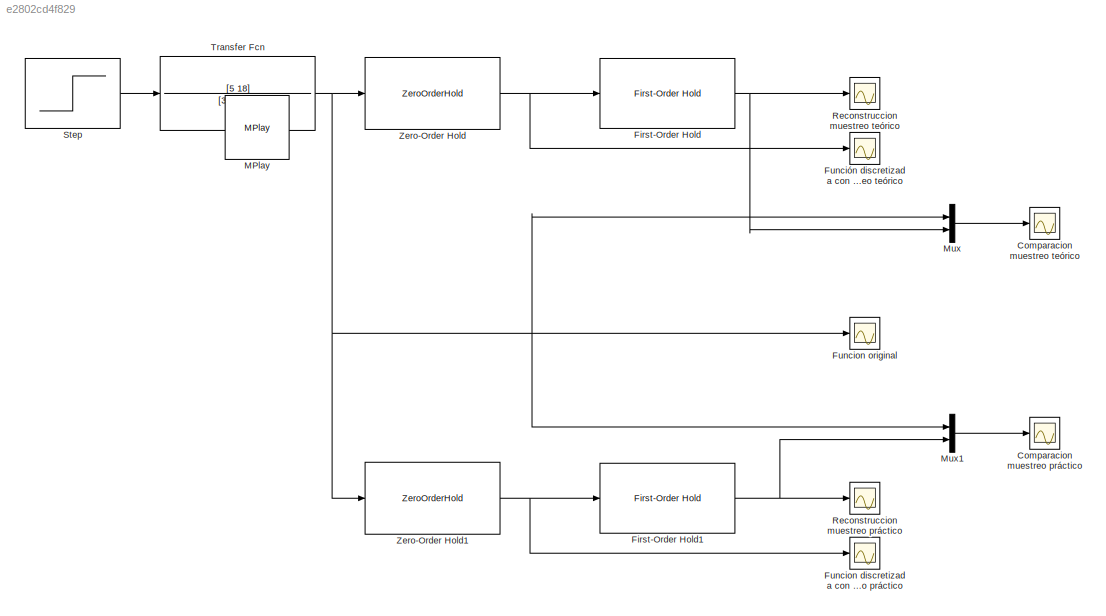
MODEL slx_e2802cd4f829
KIND model
BLOCK [Scope] Comparacion muestreo práctico
  DataFormat = StructureWithTime
  Floating = off
  LegendLocations = 0.86363    0.086484     0.10029    0.053097
  NumInputPorts = 1
  Ports = [1]
  SampleTime = 0
  SaveName = ScopeData6
  ShowLegends = on
BLOCK [Scope] Comparacion muestreo teórico
  DataFormat = StructureWithTime
  Floating = off
  LegendLocations = 0.86583    0.086484      0.0959    0.053097
  NumInputPorts = 1
  Ports = [1]
  SampleTime = 0
  SaveName = ScopeData7
  ShowLegends = on
BLOCK [Reference] First-Order Hold  REF=simulink/Discrete/First-Order
Hold
  DisableCoverage = on
  Ports = [1, 1]
  SourceBlock = simulink/Discrete/First-Order\nHold
  SourceType = First-Order Hold
  Ts = 3.685
BLOCK [Reference] First-Order Hold1  REF=simulink/Discrete/First-Order
Hold
  DisableCoverage = on
  Ports = [1, 1]
  SourceBlock = simulink/Discrete/First-Order\nHold
  SourceType = First-Order Hold
  Ts = 0.3685
BLOCK [Scope] Funcion discretizada con muestreo práctico
  DataFormat = StructureWithTime
  Floating = off
  NumInputPorts = 1
  Ports = [1]
  SampleTime = 0
  SaveName = ScopeData4
  ShowLegends = off
BLOCK [Scope] Funcion original 
  DataFormat = StructureWithTime
  Floating = off
  NumInputPorts = 1
  Ports = [1]
  SampleTime = 0
  SaveName = ScopeData2
  ShowLegends = off
BLOCK [Scope] Función discretizada con muestreo teórico
  DataFormat = StructureWithTime
  Floating = off
  NumInputPorts = 1
  Ports = [1]
  SampleTime = 0
  SaveName = ScopeData1
  ShowLegends = off
BLOCK [Reference] MPlay  REF=vipviewers_win32/MPlay
  IOType = viewer
  Ports = []
  ShowInLibBrowser = off
  SourceBlock = vipviewers_win32/MPlay
  SourceType = MPlay
BLOCK [Mux] Mux
  DisplayOption = bar
  Inputs = 2
  Ports = [2, 1]
BLOCK [Mux] Mux1
  DisplayOption = bar
  Inputs = 2
  Ports = [2, 1]
BLOCK [Scope] Reconstruccion muestreo práctico
  DataFormat = StructureWithTime
  Floating = off
  NumInputPorts = 1
  Ports = [1]
  SampleTime = 0
  SaveName = ScopeData3
  ShowLegends = off
BLOCK [Scope] Reconstruccion muestreo teórico 
  DataFormat = StructureWithTime
  Floating = off
  NumInputPorts = 1
  Ports = [1]
  SampleTime = 0
  ShowLegends = off
BLOCK [Step] Step
  SampleTime = 0
BLOCK [TransferFcn] Transfer Fcn
  Denominator = [34 -6 25]
  Numerator = [5 18]
BLOCK [ZeroOrderHold] Zero-Order Hold
  SampleTime = 3.685
BLOCK [ZeroOrderHold] Zero-Order Hold1
  SampleTime = 0.3685
NET First-Order Hold1:1 -> Mux1:2, Reconstruccion muestreo práctico:1
NET First-Order Hold:1 -> Mux:2, Reconstruccion muestreo teórico :1
LINE Mux1:1 -> Comparacion muestreo práctico:1
LINE Mux:1 -> Comparacion muestreo teórico:1
LINE Step:1 -> Transfer Fcn:1
NET Transfer Fcn:1 -> Funcion original :1, Mux1:1, Mux:1, Zero-Order Hold1:1, Zero-Order Hold:1
NET Zero-Order Hold1:1 -> First-Order Hold1:1, Funcion discretizada con muestreo práctico:1
NET Zero-Order Hold:1 -> First-Order Hold:1, Función discretizada con muestreo teórico:1
note: NET lines group one-source signal fan-out (src -> all destinations, sorted); 1:1 wires keep LINE
